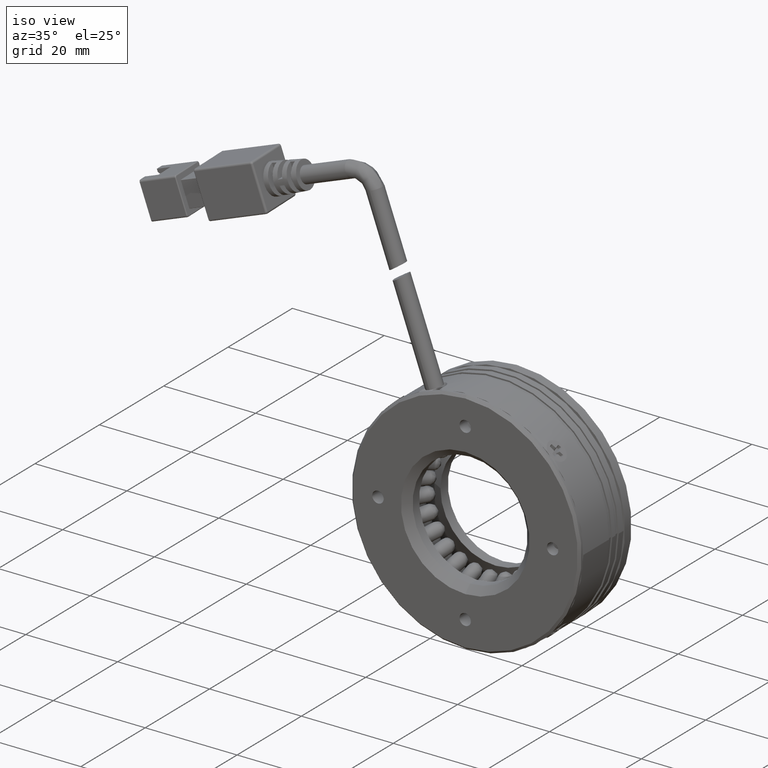
[diagram: clean part render]
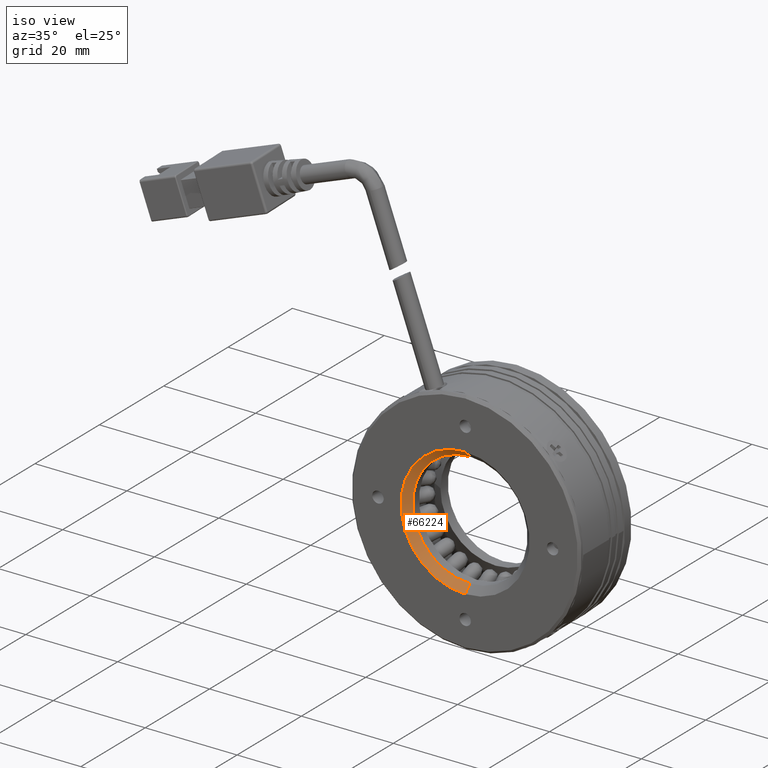
[diagram: same view with one face highlighted and labeled with its STEP entity id]
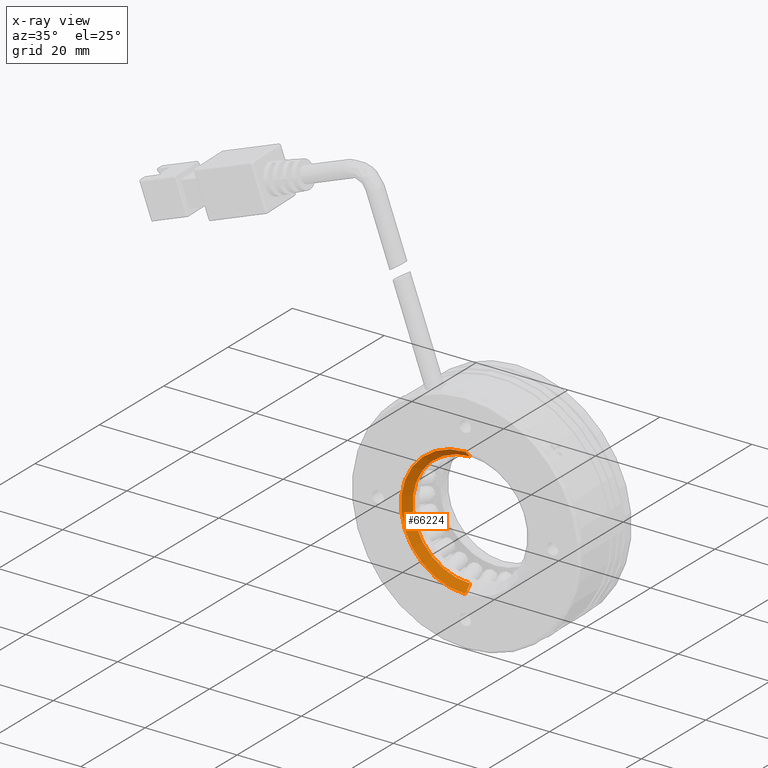
[diagram: x-ray of the same camera — body ghosted, the highlighted face saturated]
A machine part, iso view. The second image highlights one B-rep face of the part: STEP entity #66224.
The next image is the same camera in x-ray: the body ghosted, the highlighted face saturated — about 0% of this face is hidden behind the body in this view.
In plain terms, the highlighted conical surface has half-angle 45 deg.
Its self-contained STEP definition (entity closure, byte-faithful):
#1615 = DIRECTION ( 'NONE',  ( -1.239088197126290800E-016, 0.0000000000000000000, 1.000000000000000000 ) ) ;
#2766 = LINE ( 'NONE', #26568, #49357 ) ;
#13510 = FACE_OUTER_BOUND ( 'NONE', #72134, .T. ) ;
#13533 = VERTEX_POINT ( 'NONE', #14268 ) ;
#14268 = CARTESIAN_POINT ( 'NONE',  ( -9.648541418031040700, -3.850979412929343800, 62.55310575562159400 ) ) ;
#16970 = EDGE_CURVE ( 'NONE', #47333, #13533, #2766, .T. ) ;
#19289 = CIRCLE ( 'NONE', #41998, 12.50000000000001100 ) ;
#19819 = VECTOR ( 'NONE', #51680, 999.9999999999998900 ) ;
#24897 = ORIENTED_EDGE ( 'NONE', *, *, #27582, .F. ) ;
#26568 = CARTESIAN_POINT ( 'NONE',  ( -9.648541418031040700, -3.850979412929343300, 62.55310575562159400 ) ) ;
#27098 = DIRECTION ( 'NONE',  ( -3.184443755973792100E-018, -0.7071067811865489100, -0.7071067811865462400 ) ) ;
#27582 = EDGE_CURVE ( 'NONE', #65207, #47333, #19289, .T. ) ;
#28279 = CARTESIAN_POINT ( 'NONE',  ( -9.648541418031040700, -2.350979412929341100, 76.55310575562158700 ) ) ;
#34410 = DIRECTION ( 'NONE',  ( -1.387778780781444400E-016, 3.469446951953611100E-017, 1.000000000000000000 ) ) ;
#34627 = CARTESIAN_POINT ( 'NONE',  ( -9.648541418031040700, -3.850979412929343300, 76.55310575562158700 ) ) ;
#35755 = EDGE_CURVE ( 'NONE', #65207, #61237, #66421, .T. ) ;
#38040 = DIRECTION ( 'NONE',  ( 0.0000000000000000000, -1.000000000000000000, -0.0000000000000000000 ) ) ;
#38211 = CONICAL_SURFACE ( 'NONE', #52212, 13.99999999999999800, 0.7853981633974465000 ) ;
#39689 = CARTESIAN_POINT ( 'NONE',  ( -9.648541418031042500, -3.850979412929343300, 90.55310575562158700 ) ) ;
#40693 = DIRECTION ( 'NONE',  ( 0.0000000000000000000, -1.000000000000000000, -0.0000000000000000000 ) ) ;
#41998 = AXIS2_PLACEMENT_3D ( 'NONE', #28279, #70751, #34410 ) ;
#42445 = EDGE_CURVE ( 'NONE', #61237, #13533, #67606, .T. ) ;
#43852 = ORIENTED_EDGE ( 'NONE', *, *, #35755, .T. ) ;
#45729 = ORIENTED_EDGE ( 'NONE', *, *, #42445, .T. ) ;
#47333 = VERTEX_POINT ( 'NONE', #56602 ) ;
#49357 = VECTOR ( 'NONE', #27098, 999.9999999999998900 ) ;
#51680 = DIRECTION ( 'NONE',  ( -8.341116186757539800E-017, -0.7071067811865489100, 0.7071067811865462400 ) ) ;
#52212 = AXIS2_PLACEMENT_3D ( 'NONE', #34627, #40693, #71236 ) ;
#52447 = ORIENTED_EDGE ( 'NONE', *, *, #16970, .F. ) ;
#56602 = CARTESIAN_POINT ( 'NONE',  ( -9.648541418031038900, -2.350979412929341100, 64.05310575562157300 ) ) ;
#57845 = CARTESIAN_POINT ( 'NONE',  ( -9.648541418031042500, -3.850979412929343800, 90.55310575562158700 ) ) ;
#57950 = CARTESIAN_POINT ( 'NONE',  ( -9.648541418031044300, -2.350979412929341100, 89.05310575562160100 ) ) ;
#60456 = AXIS2_PLACEMENT_3D ( 'NONE', #74477, #38040, #1615 ) ;
#61237 = VERTEX_POINT ( 'NONE', #57845 ) ;
#65207 = VERTEX_POINT ( 'NONE', #57950 ) ;
#66224 = ADVANCED_FACE ( 'NONE', ( #13510 ), #38211, .F. ) ;
#66421 = LINE ( 'NONE', #39689, #19819 ) ;
#67606 = CIRCLE ( 'NONE', #60456, 13.99999999999999800 ) ;
#70751 = DIRECTION ( 'NONE',  ( 0.0000000000000000000, -1.000000000000000000, 0.0000000000000000000 ) ) ;
#71236 = DIRECTION ( 'NONE',  ( -1.239088197126290800E-016, 0.0000000000000000000, 1.000000000000000000 ) ) ;
#72134 = EDGE_LOOP ( 'NONE', ( #52447, #24897, #43852, #45729 ) ) ;
#74477 = CARTESIAN_POINT ( 'NONE',  ( -9.648541418031040700, -3.850979412929343800, 76.55310575562158700 ) ) ;